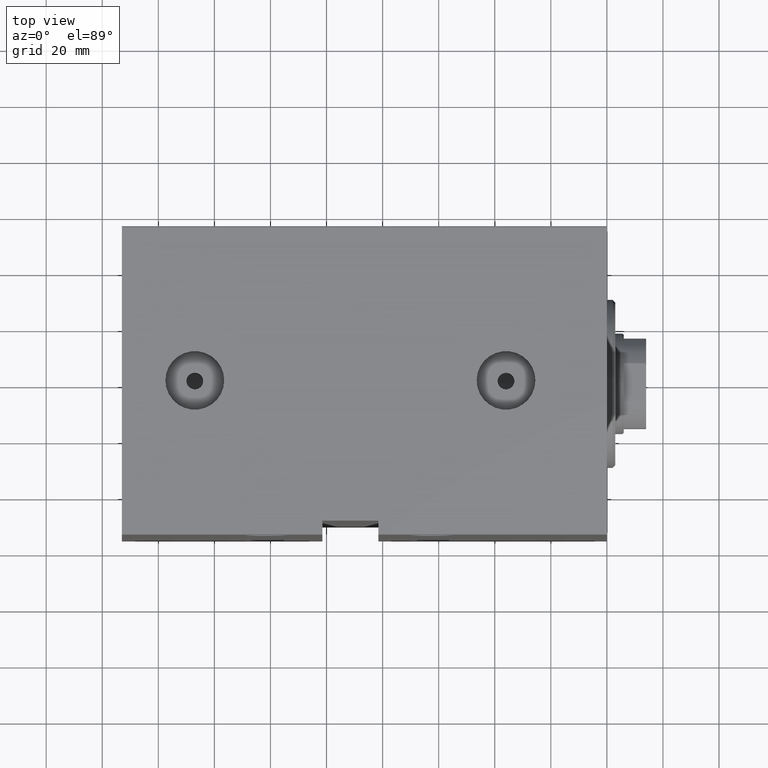
[diagram: clean part render]
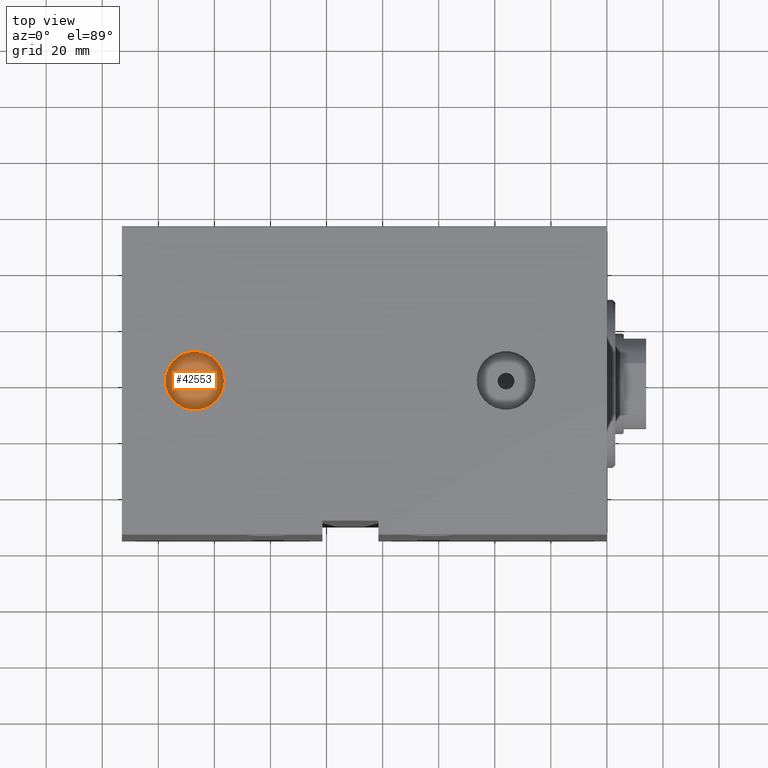
[diagram: same view with one face highlighted and labeled with its STEP entity id]
A machine part, top view. The second image highlights one B-rep face of the part: STEP entity #42553.
In plain terms, the highlighted planar face has unit normal (0, -0, 1).
Its self-contained STEP definition (entity closure, byte-faithful):
#1311 = CARTESIAN_POINT ( 'NONE',  ( 144.0000000000000284, 3.673940397442044091E-16, 56.74000000000000909 ) ) ;
#1741 = FACE_OUTER_BOUND ( 'NONE', #42489, .T. ) ;
#2406 = CARTESIAN_POINT ( 'NONE',  ( 147.0000000000000284, 0.000000000000000000, 56.74000000000000909 ) ) ;
#7811 = CARTESIAN_POINT ( 'NONE',  ( 147.0000000000000284, 0.000000000000000000, 56.74000000000000909 ) ) ;
#8813 = CARTESIAN_POINT ( 'NONE',  ( 136.5200000000000387, 1.283429845506423714E-15, 56.74000000000000909 ) ) ;
#9480 = CARTESIAN_POINT ( 'NONE',  ( 147.0000000000000284, 0.000000000000000000, 56.74000000000000909 ) ) ;
#9799 = EDGE_CURVE ( 'NONE', #38757, #29679, #21099, .T. ) ;
#10778 = AXIS2_PLACEMENT_3D ( 'NONE', #7811, #15455, #42141 ) ;
#11137 = DIRECTION ( 'NONE',  ( 1.000000000000000000, 0.000000000000000000, 0.000000000000000000 ) ) ;
#11843 = DIRECTION ( 'NONE',  ( 0.000000000000000000, 0.000000000000000000, 1.000000000000000000 ) ) ;
#12586 = ORIENTED_EDGE ( 'NONE', *, *, #16049, .F. ) ;
#15000 = DIRECTION ( 'NONE',  ( 1.000000000000000000, 0.000000000000000000, 0.000000000000000000 ) ) ;
#15455 = DIRECTION ( 'NONE',  ( 0.000000000000000000, 0.000000000000000000, 1.000000000000000000 ) ) ;
#15663 = CARTESIAN_POINT ( 'NONE',  ( 147.0000000000000284, 0.000000000000000000, 56.74000000000000909 ) ) ;
#16049 = EDGE_CURVE ( 'NONE', #43434, #16496, #17496, .T. ) ;
#16496 = VERTEX_POINT ( 'NONE', #16902 ) ;
#16764 = DIRECTION ( 'NONE',  ( 1.000000000000000000, 0.000000000000000000, 0.000000000000000000 ) ) ;
#16902 = CARTESIAN_POINT ( 'NONE',  ( 150.0000000000000284, 0.000000000000000000, 56.74000000000000909 ) ) ;
#17320 = DIRECTION ( 'NONE',  ( 1.000000000000000000, 0.000000000000000000, 0.000000000000000000 ) ) ;
#17496 = CIRCLE ( 'NONE', #34693, 3.000000000000002665 ) ;
#18329 = DIRECTION ( 'NONE',  ( 0.000000000000000000, 0.000000000000000000, 1.000000000000000000 ) ) ;
#21099 = CIRCLE ( 'NONE', #41136, 10.47999999999998977 ) ;
#22100 = AXIS2_PLACEMENT_3D ( 'NONE', #9480, #33503, #17320 ) ;
#24881 = FACE_BOUND ( 'NONE', #28050, .T. ) ;
#28050 = EDGE_LOOP ( 'NONE', ( #35287, #12586 ) ) ;
#28429 = EDGE_CURVE ( 'NONE', #16496, #43434, #39200, .T. ) ;
#29025 = CARTESIAN_POINT ( 'NONE',  ( 157.4800000000000182, 0.000000000000000000, 56.74000000000000909 ) ) ;
#29679 = VERTEX_POINT ( 'NONE', #29025 ) ;
#33162 = EDGE_CURVE ( 'NONE', #29679, #38757, #41432, .T. ) ;
#33503 = DIRECTION ( 'NONE',  ( 0.000000000000000000, 0.000000000000000000, 1.000000000000000000 ) ) ;
#34693 = AXIS2_PLACEMENT_3D ( 'NONE', #35372, #18329, #11137 ) ;
#35287 = ORIENTED_EDGE ( 'NONE', *, *, #28429, .F. ) ;
#35372 = CARTESIAN_POINT ( 'NONE',  ( 147.0000000000000284, 0.000000000000000000, 56.74000000000000909 ) ) ;
#36306 = DIRECTION ( 'NONE',  ( 0.000000000000000000, 0.000000000000000000, 1.000000000000000000 ) ) ;
#37067 = AXIS2_PLACEMENT_3D ( 'NONE', #15663, #11843, #15000 ) ;
#38565 = PLANE ( 'NONE',  #10778 ) ;
#38757 = VERTEX_POINT ( 'NONE', #8813 ) ;
#39200 = CIRCLE ( 'NONE', #37067, 3.000000000000002665 ) ;
#39950 = ORIENTED_EDGE ( 'NONE', *, *, #9799, .T. ) ;
#41136 = AXIS2_PLACEMENT_3D ( 'NONE', #2406, #36306, #16764 ) ;
#41432 = CIRCLE ( 'NONE', #22100, 10.47999999999998977 ) ;
#42141 = DIRECTION ( 'NONE',  ( 1.000000000000000000, 0.000000000000000000, -0.000000000000000000 ) ) ;
#42489 = EDGE_LOOP ( 'NONE', ( #42727, #39950 ) ) ;
#42553 = ADVANCED_FACE ( 'NONE', ( #24881, #1741 ), #38565, .T. ) ;
#42727 = ORIENTED_EDGE ( 'NONE', *, *, #33162, .T. ) ;
#43434 = VERTEX_POINT ( 'NONE', #1311 ) ;